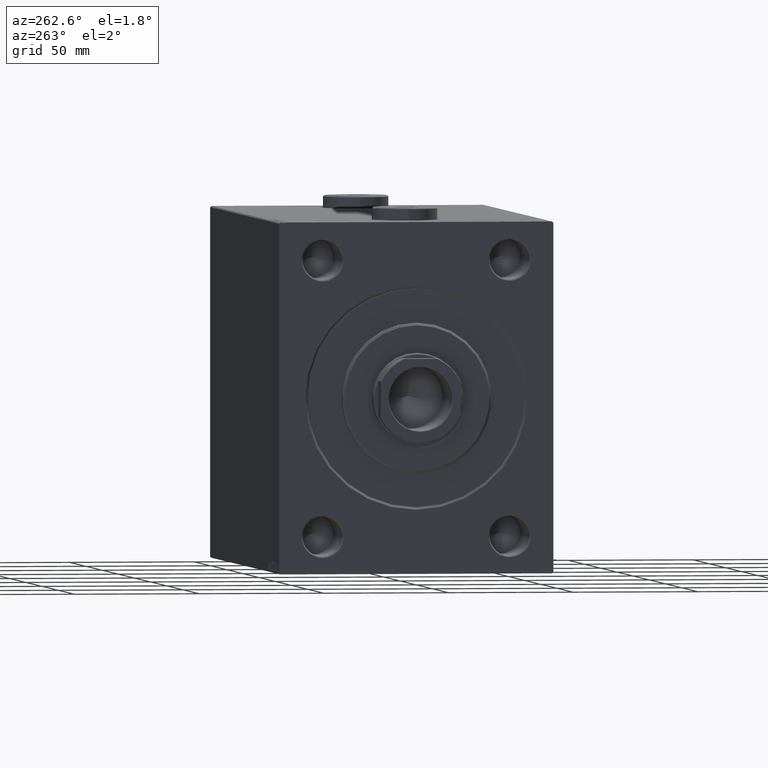
[diagram: clean part render]
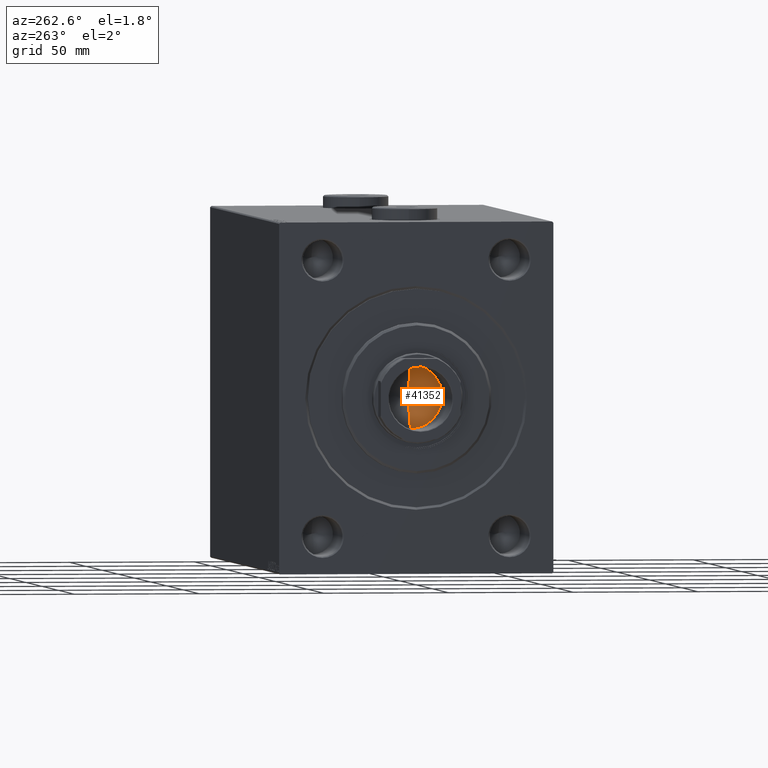
[diagram: same view with one face highlighted and labeled with its STEP entity id]
A machine part, auxiliary view. The second image highlights one B-rep face of the part: STEP entity #41352.
In plain terms, the highlighted conical surface has half-angle 59 deg.
Its self-contained STEP definition (entity closure, byte-faithful):
#1902 = CARTESIAN_POINT ( 'NONE',  ( 12.74999999999999467, 0.000000000000000000, 174.0000000000000284 ) ) ;
#4677 = ORIENTED_EDGE ( 'NONE', *, *, #35994, .F. ) ;
#5162 = EDGE_CURVE ( 'NONE', #42481, #23173, #30133, .T. ) ;
#5578 = DIRECTION ( 'NONE',  ( 1.000000000000000000, 0.000000000000000000, 0.000000000000000000 ) ) ;
#6494 = CARTESIAN_POINT ( 'NONE',  ( 0.000000000000000000, 0.000000000000000000, 174.0000000000000284 ) ) ;
#7111 = CARTESIAN_POINT ( 'NONE',  ( -1.026246296720136938E-14, 0.000000000000000000, 166.3390271073986071 ) ) ;
#7360 = EDGE_LOOP ( 'NONE', ( #4677, #38892, #8152 ) ) ;
#8152 = ORIENTED_EDGE ( 'NONE', *, *, #8988, .T. ) ;
#8750 = CONICAL_SURFACE ( 'NONE', #41951, 12.74999999999999467, 1.029744258676653645 ) ;
#8988 = EDGE_CURVE ( 'NONE', #23173, #36521, #40747, .T. ) ;
#12255 = LINE ( 'NONE', #22672, #45101 ) ;
#14201 = CARTESIAN_POINT ( 'NONE',  ( 0.000000000000000000, 0.000000000000000000, 174.0000000000000284 ) ) ;
#20378 = DIRECTION ( 'NONE',  ( -0.000000000000000000, -0.000000000000000000, 1.000000000000000000 ) ) ;
#22672 = CARTESIAN_POINT ( 'NONE',  ( 12.74999999999999467, 0.000000000000000000, 174.0000000000000284 ) ) ;
#23173 = VERTEX_POINT ( 'NONE', #24809 ) ;
#24809 = CARTESIAN_POINT ( 'NONE',  ( -12.74999999999999467, 1.561424668912874519E-15, 174.0000000000000284 ) ) ;
#30133 = LINE ( 'NONE', #34048, #43112 ) ;
#31774 = DIRECTION ( 'NONE',  ( 1.000000000000000000, 0.000000000000000000, 0.000000000000000000 ) ) ;
#33419 = AXIS2_PLACEMENT_3D ( 'NONE', #14201, #35463, #31774 ) ;
#34048 = CARTESIAN_POINT ( 'NONE',  ( -12.74999999999999467, 1.561424668912874519E-15, 174.0000000000000284 ) ) ;
#35463 = DIRECTION ( 'NONE',  ( -0.000000000000000000, -0.000000000000000000, 1.000000000000000000 ) ) ;
#35994 = EDGE_CURVE ( 'NONE', #42481, #36521, #12255, .T. ) ;
#36521 = VERTEX_POINT ( 'NONE', #1902 ) ;
#38892 = ORIENTED_EDGE ( 'NONE', *, *, #5162, .T. ) ;
#40747 = CIRCLE ( 'NONE', #33419, 12.74999999999999467 ) ;
#40926 = FACE_OUTER_BOUND ( 'NONE', #7360, .T. ) ;
#41106 = DIRECTION ( 'NONE',  ( 0.8571673007021118895, 0.000000000000000000, 0.5150380749100549327 ) ) ;
#41193 = DIRECTION ( 'NONE',  ( -0.8571673007021118895, 1.049727191138618079E-16, 0.5150380749100549327 ) ) ;
#41352 = ADVANCED_FACE ( 'NONE', ( #40926 ), #8750, .F. ) ;
#41951 = AXIS2_PLACEMENT_3D ( 'NONE', #6494, #20378, #5578 ) ;
#42481 = VERTEX_POINT ( 'NONE', #7111 ) ;
#43112 = VECTOR ( 'NONE', #41193, 1000.000000000000000 ) ;
#45101 = VECTOR ( 'NONE', #41106, 1000.000000000000000 ) ;